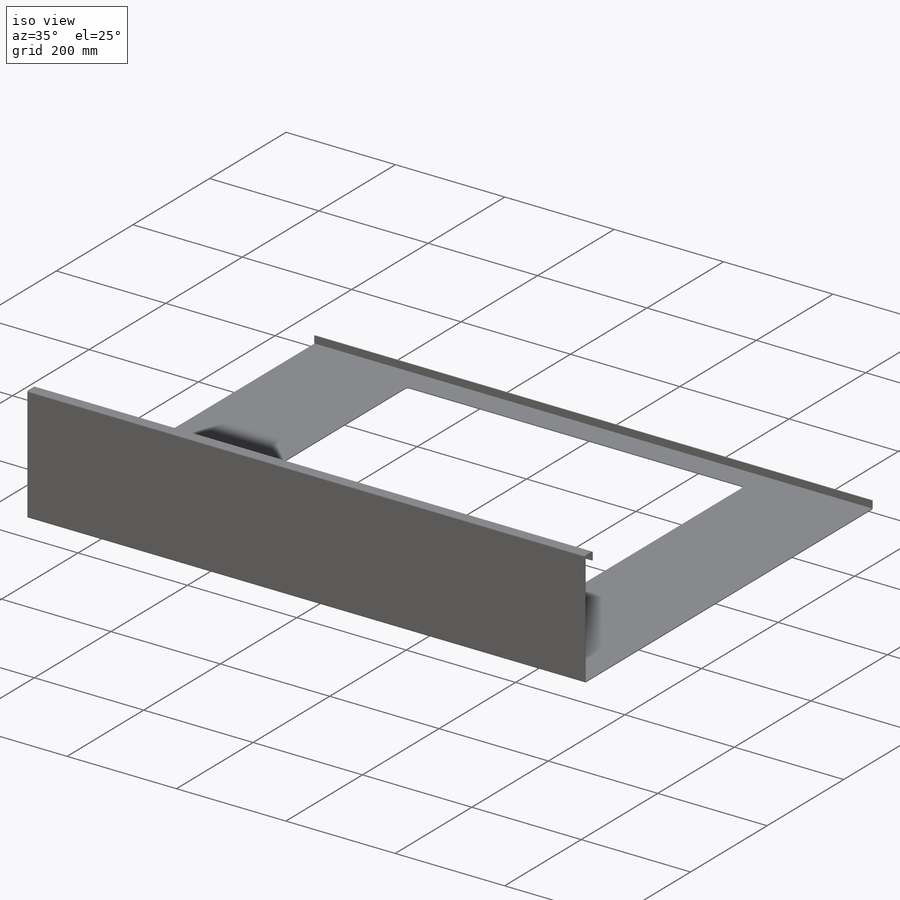
[diagram: iso view]
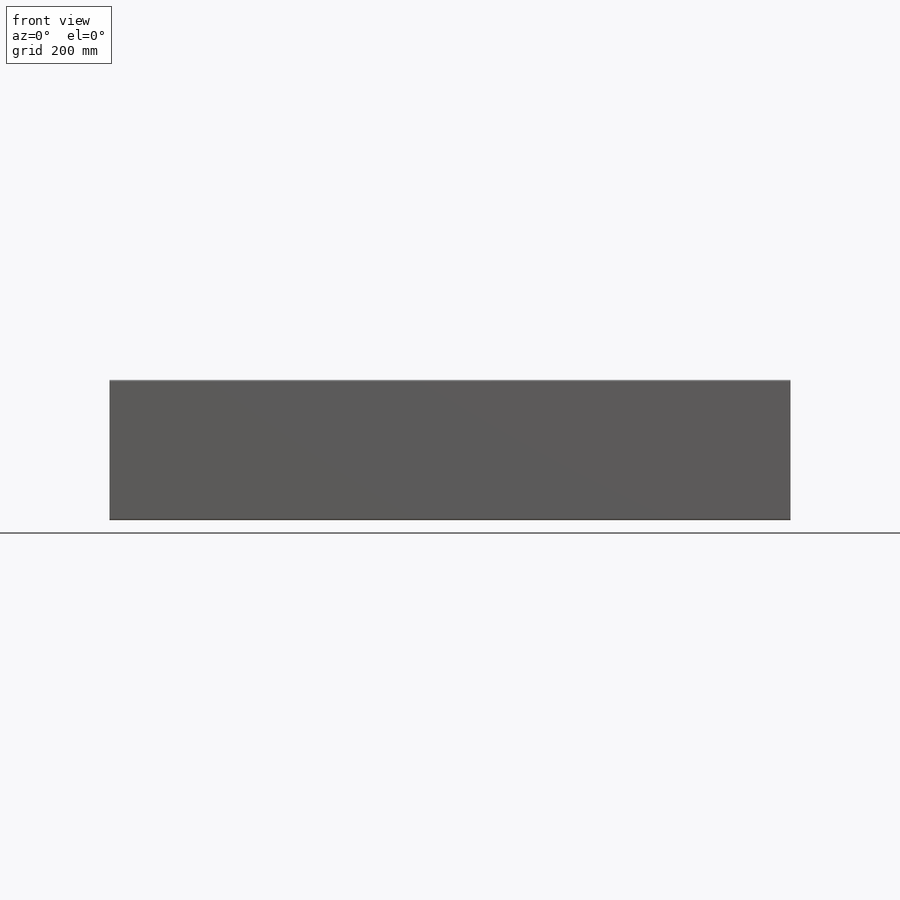
[diagram: front view]
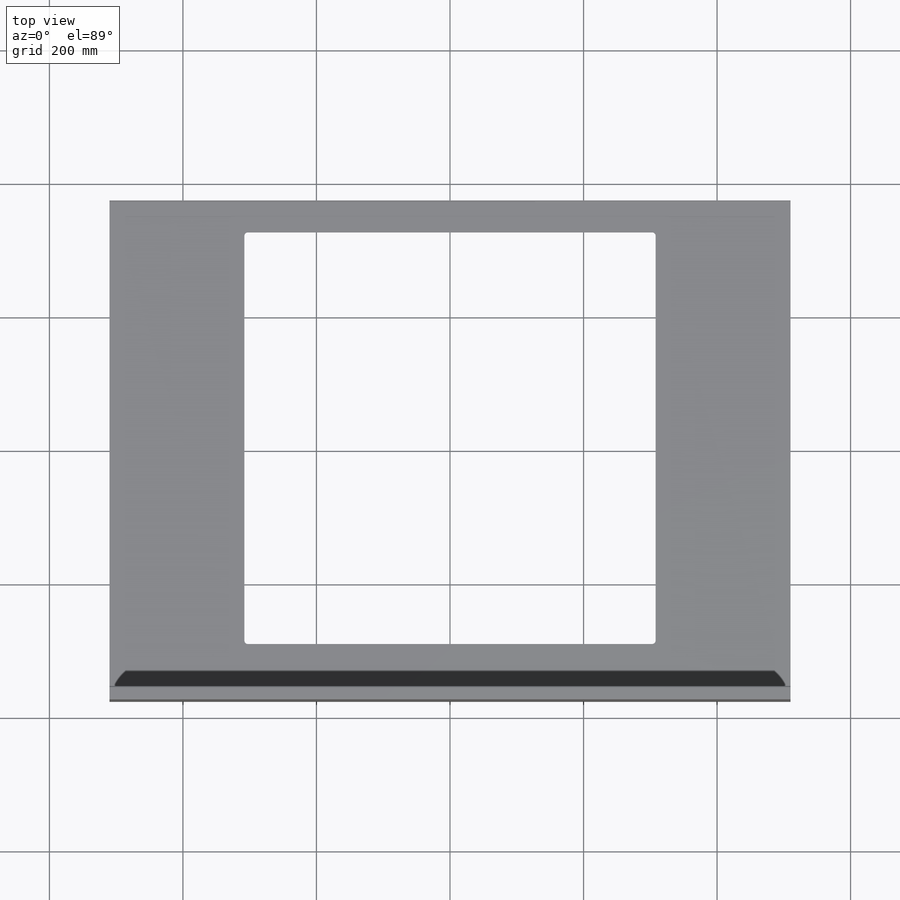
[diagram: top view]
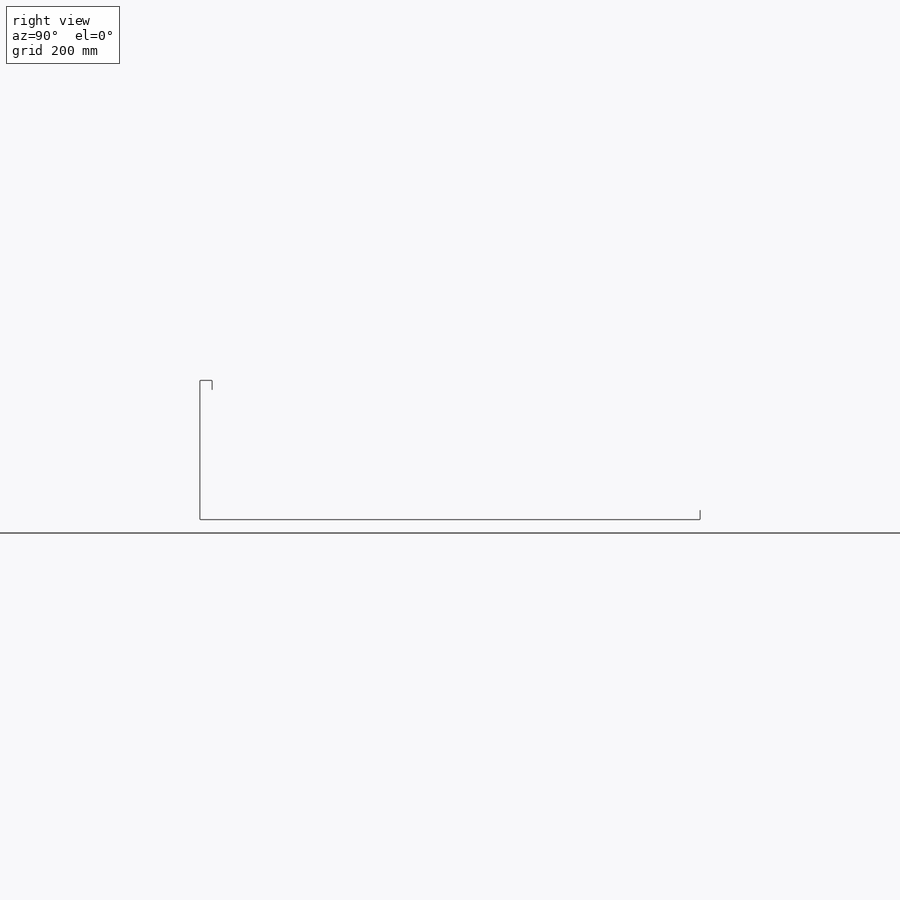
[diagram: right view]
SOLIDWORKS PART (.sldprt)
format: sldprt  version: not decoded by parser v0  size: 502,784 bytes
history: native  units: mm
features: sketch x9, sheet_metal_op x6, fillet x4, plane x3, material x1, cut_extrude x1, mirror x1 + 2 further entries (+8 scaffold rows collapsed; 1 parser-record rows omitted)
feature tree (36):
  scaffold x8  (default folders/planes/origin — collapsed)
  material  "1.4301 2J EF"
  "Beschriftung"  RD1=1020mm RD2=998.984734mm
  plane  "Ebene vorne"
  plane  "Ebene oben"
  plane  "Ebene rechts"
  sketch  "Skizze1"  dims[D1=751.0mm D2=1020.0mm]
  sheet_metal_op  "Blech1"
  sheet_metal_op  "Basis-Blech1"
  sketch  "Skizze16"  dims[c1.D1=~200.401692mm c1.D2=~109.809146mm c2.D1=~321.772416mm c2.D2=507.8673mm c3.D1=616.0mm c3.D2=605.5mm c3.D3=402.0mm c4.D1=105.0mm c4.D3=616.0mm c4.D4=616.0mm c5.D1=~364.572398mm]
  cut_extrude  "Schnitt-Linear austragen1"  [1 undecoded]
  sketch  "Skizze20"  dims[c1.D1=~80.883616mm c1.D2=~104.55407mm c2.D1=202.0mm c2.D2=40.0mm]
  sheet_metal_op  "Schnitt-Linear austragen2"
  mirror  "Spiegeln1"
  sketch  "Skizze6"  dims[c1.D1=0.75mm c1.D4=90.0deg c1.D5=1.0 c1.D8=0.5mm c1.D9=0.5mm c2.D1=0.75mm c2.D2=500.0mm c2.D3=0.0mm c2.D6=10.0mm c2.D7=210.0mm c2.D8=0.1mm c2.Kante-Lasche2=0.0]
  sketch  "Skizze18"
  sheet_metal_op  "Kantenbiegung5"  Kante-Lasche3=0
  sketch  "Skizze12"
  sheet_metal_op  "Kantenbiegung3"  Kante-Lasche4=0
  sketch  "Skizze23"
  sheet_metal_op  "Kantenbiegung6"
  fillet  "Fillet1"  Radius=5mm
  "Abwicklung1"
  sketch  "Biegung-Linien1"
  sketch  "Rahmen1"
  fillet  "Abwickeln-<Kantenbiegung3>1"  [1 undecoded]
  fillet  "Abwickeln-<Kantenbiegung5>1"  [1 undecoded]
  fillet  "Abwickeln-<Kantenbiegung6>1"  [1 undecoded]
  parser-record x1  (decoder bookkeeping rows leaked as tree rows — omitted from the tree; the rows remain in map.json)
decode coverage: 7 of 21 modeling features carry decoded parameters; 2 rows unclassified (native names shown)
note: ~ marks probable driven/reference dimensions
note: 4 parameter values undecoded
summary: no parameter record found for 4 features
note: suppression state not decoded; provenance and decode notes live in map.json
